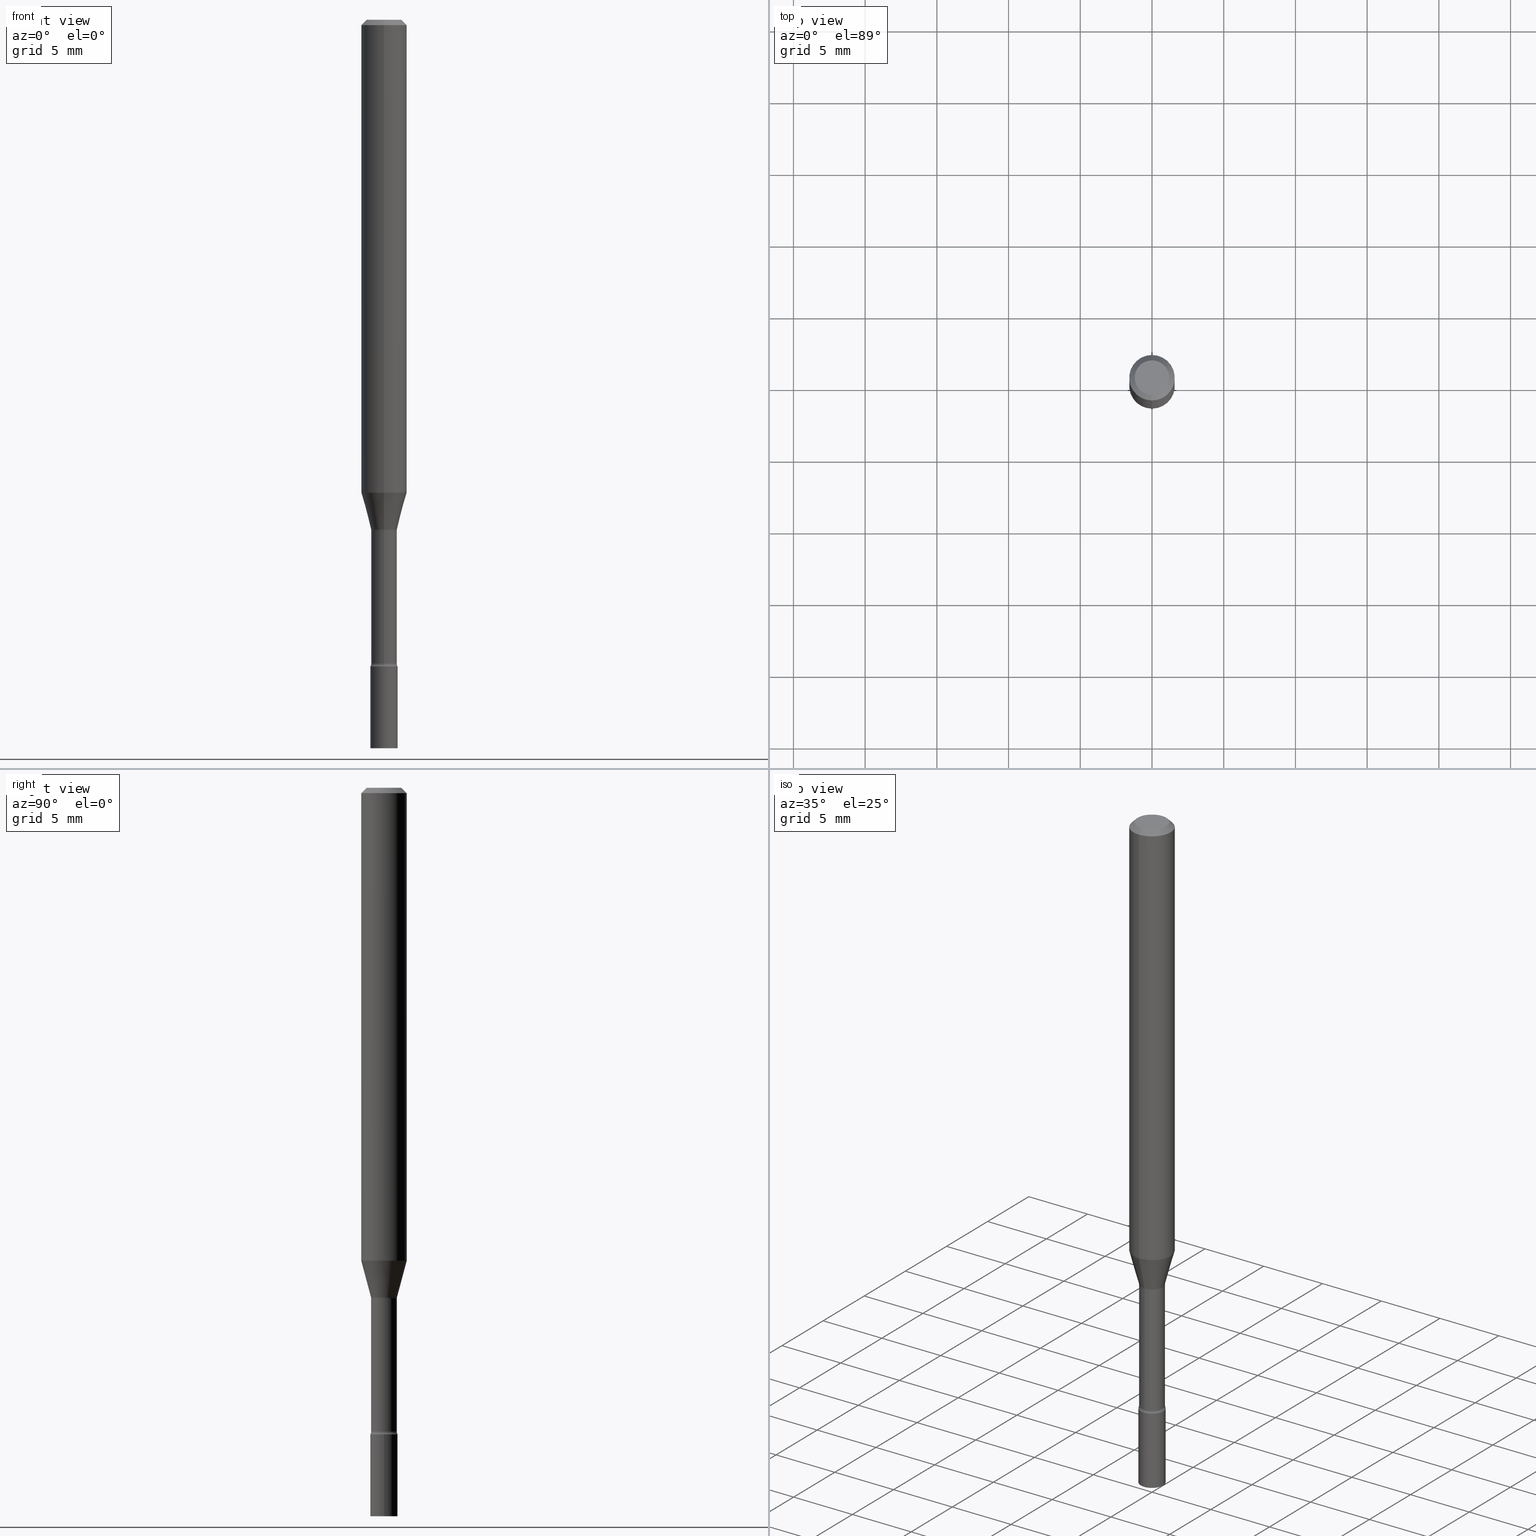
[diagram: canonical four-view strip — front | top / right | iso, engineering-drawing reading convention]
A machine part, canonical four-view strip (front | top / right | iso — engineering-drawing reading convention). The complete STEP part file that produces these views, byte-faithful:
ISO-10303-21;
HEADER;
FILE_DESCRIPTION (( 'STEP AP203' ),
    '1' );
FILE_NAME ('03470.STEP',
    '2024-03-08T21:27:31',
    ( '' ),
    ( '' ),
    'SwSTEP 2.0',
    'SolidWorks 2023',
    '' );
FILE_SCHEMA (( 'CONFIG_CONTROL_DESIGN' ));
ENDSEC;

DATA;
#1 = DIRECTION ( 'NONE',  ( 1.000000000000000000, -6.982962677686268288E-15, 0.000000000000000000 ) ) ;
#2 = ORIENTED_EDGE ( 'NONE', *, *, #157, .F. ) ;
#3 = CIRCLE ( 'NONE', #180, 0.01500000000000001853 ) ;
#4 = DIRECTION ( 'NONE',  ( -2.445468806185136597E-29, 3.491481338843145583E-15, 1.000000000000000000 ) ) ;
#5 = CC_DESIGN_APPROVAL ( #159, ( #132 ) ) ;
#6 = AXIS2_PLACEMENT_3D ( 'NONE', #146, #426, #188 ) ;
#7 = FACE_OUTER_BOUND ( 'NONE', #168, .T. ) ;
#8 = CARTESIAN_POINT ( 'NONE',  ( 3.668185763186064161E-31, -5.237246992060938980E-17, -0.01500000000000003067 ) ) ;
#9 = VERTEX_POINT ( 'NONE', #94 ) ;
#10 = ADVANCED_FACE ( 'NONE', ( #7 ), #500, .F. ) ;
#11 = DIRECTION ( 'NONE',  ( -6.982962677686265133E-15, -1.000000000000000000, 0.000000000000000000 ) ) ;
#12 = EDGE_LOOP ( 'NONE', ( #207, #153, #401, #475 ) ) ;
#13 = EDGE_CURVE ( 'NONE', #376, #9, #486, .T. ) ;
#14 = EDGE_CURVE ( 'NONE', #516, #52, #217, .T. ) ;
#15 = DIRECTION ( 'NONE',  ( -1.000000000000000000, 6.982962677686265922E-15, -4.883557194083112901E-29 ) ) ;
#16 = VECTOR ( 'NONE', #444, 39.37007874015748143 ) ;
#17 = VERTEX_POINT ( 'NONE', #507 ) ;
#18 = EDGE_CURVE ( 'NONE', #283, #117, #459, .T. ) ;
#19 = VERTEX_POINT ( 'NONE', #29 ) ;
#20 = APPLICATION_PROTOCOL_DEFINITION ( 'international standard', 'config_control_design', 1994, #316 ) ;
#21 = DIRECTION ( 'NONE',  ( -6.982962677686265922E-15, -1.000000000000000000, 4.370956789862821150E-15 ) ) ;
#22 = COORDINATED_UNIVERSAL_TIME_OFFSET ( 5, 0, .BEHIND. ) ;
#23 = FACE_OUTER_BOUND ( 'NONE', #140, .T. ) ;
#24 = CIRCLE ( 'NONE', #111, 0.03576111260566398192 ) ;
#25 = DATE_AND_TIME ( #105, #252 ) ;
#26 = DIRECTION ( 'NONE',  ( -6.982962677686265133E-15, -1.000000000000000000, 0.000000000000000000 ) ) ;
#27 = DIRECTION ( 'NONE',  ( 1.000000000000000000, 0.000000000000000000, 0.000000000000000000 ) ) ;
#28 = DIRECTION ( 'NONE',  ( -6.982962677686265922E-15, -1.000000000000000000, 0.000000000000000000 ) ) ;
#29 = CARTESIAN_POINT ( 'NONE',  ( -0.03749999999999999861, -6.323717501156401251E-15, -2.000000000000000000 ) ) ;
#30 = AXIS2_PLACEMENT_3D ( 'NONE', #148, #422, #349 ) ;
#31 = DIRECTION ( 'NONE',  ( -2.445457175457371238E-29, 3.491497994707285669E-15, 1.000000000000000000 ) ) ;
#32 = EDGE_CURVE ( 'NONE', #82, #403, #253, .T. ) ;
#33 = CARTESIAN_POINT ( 'NONE',  ( 3.316907271900976096E-16, 0.04749999999999999362, -1.803027146357572283E-16 ) ) ;
#34 = ORIENTED_EDGE ( 'NONE', *, *, #185, .F. ) ;
#35 = CARTESIAN_POINT ( 'NONE',  ( 0.000000000000000000, 0.000000000000000000, 0.000000000000000000 ) ) ;
#36 = EDGE_CURVE ( 'NONE', #289, #286, #298, .T. ) ;
#37 = ORIENTED_EDGE ( 'NONE', *, *, #307, .T. ) ;
#38 = AXIS2_PLACEMENT_3D ( 'NONE', #119, #472, #78 ) ;
#39 = VECTOR ( 'NONE', #410, 39.37007874015748143 ) ;
#40 = DIRECTION ( 'NONE',  ( -2.445457175457371238E-29, 3.491497994707285669E-15, 1.000000000000000000 ) ) ;
#41 = EDGE_LOOP ( 'NONE', ( #209, #178, #432, #296 ) ) ;
#42 = DIRECTION ( 'NONE',  ( 1.000000000000000000, -6.982962677686266711E-15, 4.876176775795935793E-29 ) ) ;
#43 = ORIENTED_EDGE ( 'NONE', *, *, #114, .F. ) ;
#44 = ADVANCED_FACE ( 'NONE', ( #465 ), #407, .F. ) ;
#45 = CARTESIAN_POINT ( 'NONE',  ( 3.428485609800787057E-29, -4.894968807958481776E-15, -1.401974787463811101 ) ) ;
#46 = ORIENTED_EDGE ( 'NONE', *, *, #324, .T. ) ;
#47 = MANIFOLD_SOLID_BREP ( 'Body-Move/Copy2[2]', #483 ) ;
#48 = CIRCLE ( 'NONE', #199, 0.03749999999999999861 ) ;
#49 = PRODUCT ( '03470', '03470', '', ( #345 ) ) ;
#50 = CARTESIAN_POINT ( 'NONE',  ( 3.840629472727447874E-16, 0.04749999999999999362, -1.947592745229184119E-16 ) ) ;
#51 = AXIS2_PLACEMENT_3D ( 'NONE', #353, #275, #457 ) ;
#52 = VERTEX_POINT ( 'NONE', #113 ) ;
#53 = DIRECTION ( 'NONE',  ( -2.445457175457371238E-29, 3.491497994707285669E-15, 1.000000000000000000 ) ) ;
#54 = ORIENTED_EDGE ( 'NONE', *, *, #413, .F. ) ;
#55 = CARTESIAN_POINT ( 'NONE',  ( 4.890937612370273194E-29, -6.982962677686291165E-15, -2.000000000000000000 ) ) ;
#56 = ORIENTED_EDGE ( 'NONE', *, *, #68, .T. ) ;
#57 = ADVANCED_FACE ( 'NONE', ( #23 ), #109, .T. ) ;
#58 = CARTESIAN_POINT ( 'NONE',  ( 4.340707130978617347E-29, -6.197379376446583794E-15, -1.775000000000000133 ) ) ;
#59 = VECTOR ( 'NONE', #470, 39.37007874015748143 ) ;
#60 = ORIENTED_EDGE ( 'NONE', *, *, #324, .F. ) ;
#61 = DATE_AND_TIME ( #112, #491 ) ;
#62 = CARTESIAN_POINT ( 'NONE',  ( 3.428485609800787057E-29, -4.894968807958481776E-15, -1.401974787463811101 ) ) ;
#63 = APPROVAL ( #141, 'UNSPECIFIED' ) ;
#64 = APPROVAL_ROLE ( '' ) ;
#65 = PLANE ( 'NONE',  #352 ) ;
#66 = DIRECTION ( 'NONE',  ( -6.982962677686265922E-15, -1.000000000000000000, 3.491497994707285669E-15 ) ) ;
#67 = AXIS2_PLACEMENT_3D ( 'NONE', #326, #331, #487 ) ;
#68 = EDGE_CURVE ( 'NONE', #340, #52, #346, .T. ) ;
#69 = AXIS2_PLACEMENT_3D ( 'NONE', #390, #505, #270 ) ;
#70 = CONICAL_SURFACE ( 'NONE', #405, 0.06250000000000000000, 0.7853981633974483900 ) ;
#71 = APPROVAL_ROLE ( '' ) ;
#72 = DIRECTION ( 'NONE',  ( 1.000000000000000000, -7.105427357601001070E-15, 4.926315712517589516E-29 ) ) ;
#73 = EDGE_CURVE ( 'NONE', #340, #376, #24, .T. ) ;
#74 =( LENGTH_UNIT ( ) NAMED_UNIT ( * ) SI_UNIT ( $, .METRE. ) );
#75 = CARTESIAN_POINT ( 'NONE',  ( 3.428469303813700067E-29, -4.894992159060069761E-15, -1.401974787463811101 ) ) ;
#76 = DIRECTION ( 'NONE',  ( 7.105427357600997914E-15, 1.000000000000000000, 0.000000000000000000 ) ) ;
#77 = VERTEX_POINT ( 'NONE', #224 ) ;
#78 = DIRECTION ( 'NONE',  ( -6.982962677686266711E-15, -1.000000000000000000, 0.000000000000000000 ) ) ;
#79 = ORIENTED_EDGE ( 'NONE', *, *, #342, .T. ) ;
#80 = EDGE_CURVE ( 'NONE', #17, #19, #320, .T. ) ;
#81 = CARTESIAN_POINT ( 'NONE',  ( -4.287811248607203282E-16, -0.06250000000000005551, -0.01499999999999981209 ) ) ;
#82 = VERTEX_POINT ( 'NONE', #427 ) ;
#83 = LINE ( 'NONE', #194, #134 ) ;
#84 = ORIENTED_EDGE ( 'NONE', *, *, #32, .F. ) ;
#85 = AXIS2_PLACEMENT_3D ( 'NONE', #402, #333, #125 ) ;
#86 = CARTESIAN_POINT ( 'NONE',  ( 2.618611004132838617E-16, 0.03749999999999301115, -2.000000000000000000 ) ) ;
#87 = ADVANCED_FACE ( 'NONE', ( #145 ), #65, .F. ) ;
#88 = PLANE ( 'NONE',  #234 ) ;
#89 = VERTEX_POINT ( 'NONE', #388 ) ;
#90 = DIRECTION ( 'NONE',  ( -6.982962677686265922E-15, -1.000000000000000000, 3.491497994707285669E-15 ) ) ;
#91 = EDGE_LOOP ( 'NONE', ( #2, #84, #37, #260 ) ) ;
#92 = AXIS2_PLACEMENT_3D ( 'NONE', #86, #356, #319 ) ;
#93 = DIRECTION ( 'NONE',  ( -2.445457175457371238E-29, 3.491497994707285669E-15, 1.000000000000000000 ) ) ;
#94 = CARTESIAN_POINT ( 'NONE',  ( -4.364351673553601150E-16, -0.06250000000000456579, -1.298301615493748118 ) ) ;
#95 = EDGE_CURVE ( 'NONE', #117, #283, #48, .T. ) ;
#96 = CARTESIAN_POINT ( 'NONE',  ( 2.584599201327798623E-16, 0.03524999999999389733, -1.767098259685360606 ) ) ;
#97 = EDGE_LOOP ( 'NONE', ( #162, #371, #123, #280 ) ) ;
#98 = DIRECTION ( 'NONE',  ( 6.982962677686265922E-15, 1.000000000000000000, -3.483106191921935554E-15 ) ) ;
#99 = DESIGN_CONTEXT ( 'detailed design', #316, 'design' ) ;
#100 = ORIENTED_EDGE ( 'NONE', *, *, #514, .T. ) ;
#101 = PERSON_AND_ORGANIZATION_ROLE ( 'classification_officer' ) ;
#102 = CONICAL_SURFACE ( 'NONE', #305, 0.06250000000000000000, 0.7853981633974483900 ) ;
#103 = APPROVAL_PERSON_ORGANIZATION ( #506, #159, #181 ) ;
#104 = DIRECTION ( 'NONE',  ( -6.982962677686266711E-15, -1.000000000000000000, 0.000000000000000000 ) ) ;
#105 = CALENDAR_DATE ( 2024, 8, 3 ) ;
#106 = DIRECTION ( 'NONE',  ( 1.000000000000000000, -6.982962677686268288E-15, 0.000000000000000000 ) ) ;
#107 = PERSON_AND_ORGANIZATION ( #433, #189 ) ;
#108 = DIRECTION ( 'NONE',  ( -2.445457175457371238E-29, 3.491497994707285669E-15, 1.000000000000000000 ) ) ;
#109 = CYLINDRICAL_SURFACE ( 'NONE', #51, 0.03525000000000003131 ) ;
#110 = AXIS2_PLACEMENT_3D ( 'NONE', #55, #4, #170 ) ;
#111 = AXIS2_PLACEMENT_3D ( 'NONE', #461, #273, #313 ) ;
#112 = CALENDAR_DATE ( 2024, 8, 3 ) ;
#113 = CARTESIAN_POINT ( 'NONE',  ( 2.504663143554786295E-16, 0.03524999999999509775, -1.401974787463811101 ) ) ;
#114 = EDGE_CURVE ( 'NONE', #19, #286, #469, .T. ) ;
#115 = CARTESIAN_POINT ( 'NONE',  ( -3.508938745536919941E-16, -0.05025000000000622025, -1.767098259685360384 ) ) ;
#116 = LINE ( 'NONE', #160, #318 ) ;
#117 = VERTEX_POINT ( 'NONE', #231 ) ;
#118 = AXIS2_PLACEMENT_3D ( 'NONE', #420, #72, #266 ) ;
#119 = CARTESIAN_POINT ( 'NONE',  ( 3.418975340448834003E-29, -4.881437166405555693E-15, -1.398092501787273179 ) ) ;
#120 = CYLINDRICAL_SURFACE ( 'NONE', #377, 0.03749999999999999861 ) ;
#121 = ORIENTED_EDGE ( 'NONE', *, *, #315, .T. ) ;
#122 = DIRECTION ( 'NONE',  ( 4.937700262164548042E-15, 0.7071067811865451302, -0.7071067811865499042 ) ) ;
#123 = ORIENTED_EDGE ( 'NONE', *, *, #503, .T. ) ;
#124 = AXIS2_PLACEMENT_3D ( 'NONE', #115, #277, #428 ) ;
#125 = DIRECTION ( 'NONE',  ( -6.982962677686265922E-15, -1.000000000000000000, 3.483106191921935554E-15 ) ) ;
#126 = ADVANCED_FACE ( 'NONE', ( #511 ), #225, .T. ) ;
#127 = CARTESIAN_POINT ( 'NONE',  ( 4.321363118885798981E-29, -6.169820030142171405E-15, -1.767098259685360606 ) ) ;
#128 = CARTESIAN_POINT ( 'NONE',  ( 4.321383671524591751E-29, -6.169790597593636121E-15, -1.767098259685360606 ) ) ;
#129 = DIRECTION ( 'NONE',  ( -6.982962677686267499E-15, -1.000000000000000000, 0.000000000000000000 ) ) ;
#130 = ORIENTED_EDGE ( 'NONE', *, *, #267, .T. ) ;
#131 = VECTOR ( 'NONE', #187, 39.37007874015748143 ) ;
#132 = SECURITY_CLASSIFICATION ( '', '', #339 ) ;
#133 = LINE ( 'NONE', #404, #425 ) ;
#134 = VECTOR ( 'NONE', #122, 39.37007874015748143 ) ;
#135 = ORIENTED_EDGE ( 'NONE', *, *, #73, .T. ) ;
#136 = CARTESIAN_POINT ( 'NONE',  ( 3.668185763186064161E-31, -5.237246992060938980E-17, -0.01500000000000003067 ) ) ;
#137 = ORIENTED_EDGE ( 'NONE', *, *, #389, .F. ) ;
#138 = DATE_TIME_ROLE ( 'creation_date' ) ;
#139 = ADVANCED_FACE ( 'NONE', ( #179 ), #391, .F. ) ;
#140 = EDGE_LOOP ( 'NONE', ( #450, #332, #436, #337 ) ) ;
#141 = APPROVAL_STATUS ( 'not_yet_approved' ) ;
#142 =( GEOMETRIC_REPRESENTATION_CONTEXT ( 3 ) GLOBAL_UNCERTAINTY_ASSIGNED_CONTEXT ( ( #218 ) ) GLOBAL_UNIT_ASSIGNED_CONTEXT ( ( #348, #186, #229 ) ) REPRESENTATION_CONTEXT ( 'NONE', 'WORKASPACE' ) );
#143 = DIRECTION ( 'NONE',  ( 1.000000000000000000, -7.105427357601001070E-15, 4.926315712517589516E-29 ) ) ;
#144 = CLOSED_SHELL ( 'NONE', ( #246, #440, #248, #211 ) ) ;
#145 = FACE_OUTER_BOUND ( 'NONE', #204, .T. ) ;
#146 = CARTESIAN_POINT ( 'NONE',  ( 4.321383671524591751E-29, -6.169790597593636121E-15, -1.767098259685360606 ) ) ;
#147 = EDGE_CURVE ( 'NONE', #9, #156, #172, .T. ) ;
#148 = CARTESIAN_POINT ( 'NONE',  ( 4.321363118885798981E-29, -6.169820030142171405E-15, -1.767098259685360606 ) ) ;
#149 = APPROVAL_DATE_TIME ( #358, #159 ) ;
#150 = DIRECTION ( 'NONE',  ( -6.982962677686266711E-15, -1.000000000000000000, 0.000000000000000000 ) ) ;
#151 = DIRECTION ( 'NONE',  ( -6.982962677686265922E-15, -1.000000000000000000, 4.370956789862821150E-15 ) ) ;
#152 = CC_DESIGN_PERSON_AND_ORGANIZATION_ASSIGNMENT ( #419, #462, ( #205 ) ) ;
#153 = ORIENTED_EDGE ( 'NONE', *, *, #114, .T. ) ;
#154 = DIRECTION ( 'NONE',  ( -2.445468806185136597E-29, 3.491481338843145583E-15, 1.000000000000000000 ) ) ;
#155 = CIRCLE ( 'NONE', #481, 0.01499999999999998557 ) ;
#156 = VERTEX_POINT ( 'NONE', #343 ) ;
#157 = EDGE_CURVE ( 'NONE', #403, #117, #155, .T. ) ;
#158 = DIRECTION ( 'NONE',  ( -6.982962677686266711E-15, -1.000000000000000000, 3.491497994707286063E-15 ) ) ;
#159 = APPROVAL ( #417, 'UNSPECIFIED' ) ;
#160 = CARTESIAN_POINT ( 'NONE',  ( 2.540979878465690730E-16, 0.03576111260565909694, -1.398092501787273179 ) ) ;
#161 = EDGE_CURVE ( 'NONE', #156, #9, #261, .T. ) ;
#162 = ORIENTED_EDGE ( 'NONE', *, *, #68, .F. ) ;
#163 = CARTESIAN_POINT ( 'NONE',  ( -2.497185146378532502E-16, -0.03576111260566886690, -1.398092501787273179 ) ) ;
#164 = AXIS2_PLACEMENT_3D ( 'NONE', #222, #380, #21 ) ;
#165 = CARTESIAN_POINT ( 'NONE',  ( 4.340707130978617347E-29, -6.197379376446583794E-15, -1.775000000000000133 ) ) ;
#166 = ORIENTED_EDGE ( 'NONE', *, *, #503, .F. ) ;
#167 = DIRECTION ( 'NONE',  ( -6.982962677686265922E-15, -1.000000000000000000, 3.483106191921935554E-15 ) ) ;
#168 = EDGE_LOOP ( 'NONE', ( #366, #373, #175, #291 ) ) ;
#169 = EDGE_CURVE ( 'NONE', #376, #340, #397, .T. ) ;
#170 = DIRECTION ( 'NONE',  ( 1.000000000000000000, -6.982962677686268288E-15, 0.000000000000000000 ) ) ;
#171 = ORIENTED_EDGE ( 'NONE', *, *, #147, .T. ) ;
#172 = CIRCLE ( 'NONE', #164, 0.06250000000000000000 ) ;
#173 = DIRECTION ( 'NONE',  ( -2.438088387897960049E-29, 3.491481338843145188E-15, 1.000000000000000000 ) ) ;
#174 = AXIS2_PLACEMENT_3D ( 'NONE', #182, #230, #106 ) ;
#175 = ORIENTED_EDGE ( 'NONE', *, *, #95, .T. ) ;
#176 = EDGE_CURVE ( 'NONE', #455, #357, #297, .T. ) ;
#177 = CALENDAR_DATE ( 2024, 8, 3 ) ;
#178 = ORIENTED_EDGE ( 'NONE', *, *, #161, .T. ) ;
#179 = FACE_OUTER_BOUND ( 'NONE', #97, .T. ) ;
#180 = AXIS2_PLACEMENT_3D ( 'NONE', #375, #15, #129 ) ;
#181 = APPROVAL_ROLE ( '' ) ;
#182 = CARTESIAN_POINT ( 'NONE',  ( 4.890937612370273194E-29, -6.982962677686291165E-15, -2.000000000000000000 ) ) ;
#183 = AXIS2_PLACEMENT_3D ( 'NONE', #351, #184, #502 ) ;
#184 = DIRECTION ( 'NONE',  ( -2.445457175457371238E-29, 3.491497994707285669E-15, 1.000000000000000000 ) ) ;
#185 = EDGE_CURVE ( 'NONE', #340, #156, #116, .T. ) ;
#186 =( NAMED_UNIT ( * ) PLANE_ANGLE_UNIT ( ) SI_UNIT ( $, .RADIAN. ) );
#187 = DIRECTION ( 'NONE',  ( -2.445468806185136877E-29, 3.491481338843145188E-15, 1.000000000000000000 ) ) ;
#188 = DIRECTION ( 'NONE',  ( -6.982962677686265922E-15, -1.000000000000000000, 3.491497994707286063E-15 ) ) ;
#189 = ORGANIZATION ( 'UNSPECIFIED', 'UNSPECIFIED', '' ) ;
#190 = SHAPE_DEFINITION_REPRESENTATION ( #198, #269 ) ;
#191 = ADVANCED_FACE ( 'NONE', ( #512 ), #430, .T. ) ;
#192 = LINE ( 'NONE', #354, #415 ) ;
#193 = ORIENTED_EDGE ( 'NONE', *, *, #389, .T. ) ;
#194 = CARTESIAN_POINT ( 'NONE',  ( 4.364351673553919652E-16, 0.06249999999999995143, -0.01500000000000024751 ) ) ;
#195 = EDGE_LOOP ( 'NONE', ( #239, #301, #368, #213 ) ) ;
#196 = FACE_OUTER_BOUND ( 'NONE', #412, .T. ) ;
#197 = AXIS2_PLACEMENT_3D ( 'NONE', #127, #216, #295 ) ;
#198 = PRODUCT_DEFINITION_SHAPE ( 'NONE', 'NONE',  #205 ) ;
#199 = AXIS2_PLACEMENT_3D ( 'NONE', #382, #108, #28 ) ;
#200 = FACE_OUTER_BOUND ( 'NONE', #195, .T. ) ;
#201 = CARTESIAN_POINT ( 'NONE',  ( -2.618611004131914171E-16, -0.03750000000000618117, -1.775000000000000133 ) ) ;
#202 = ORIENTED_EDGE ( 'NONE', *, *, #292, .T. ) ;
#203 = DIRECTION ( 'NONE',  ( 2.445457175457371238E-29, -3.491497994707285669E-15, -1.000000000000000000 ) ) ;
#204 = EDGE_LOOP ( 'NONE', ( #235, #414 ) ) ;
#205 = PRODUCT_DEFINITION ( 'UNKNOWN', '', #244, #99 ) ;
#206 = CARTESIAN_POINT ( 'NONE',  ( 4.440892098500625669E-16, 0.06250000000000000000, -2.182186246692053543E-16 ) ) ;
#207 = ORIENTED_EDGE ( 'NONE', *, *, #80, .T. ) ;
#208 = FACE_OUTER_BOUND ( 'NONE', #243, .T. ) ;
#209 = ORIENTED_EDGE ( 'NONE', *, *, #342, .F. ) ;
#210 = MANIFOLD_SOLID_BREP ( 'Body-Move/Copy2[1]', #144 ) ;
#211 = ADVANCED_FACE ( 'NONE', ( #520 ), #477, .T. ) ;
#212 = DIRECTION ( 'NONE',  ( 2.445457175457371238E-29, -3.491497994707285669E-15, -1.000000000000000000 ) ) ;
#213 = ORIENTED_EDGE ( 'NONE', *, *, #13, .F. ) ;
#214 = AXIS2_PLACEMENT_3D ( 'NONE', #518, #438, #158 ) ;
#215 = CC_DESIGN_APPROVAL ( #374, ( #205 ) ) ;
#216 = DIRECTION ( 'NONE',  ( -2.445457175457371238E-29, 3.491497994707285669E-15, 1.000000000000000000 ) ) ;
#217 = CIRCLE ( 'NONE', #264, 0.03524999999999999661 ) ;
#218 = UNCERTAINTY_MEASURE_WITH_UNIT (LENGTH_MEASURE( 1.000000000000000082E-05 ), #348, 'distance_accuracy_value', 'NONE');
#219 = ORIENTED_EDGE ( 'NONE', *, *, #176, .T. ) ;
#220 = DATE_TIME_ROLE ( 'classification_date' ) ;
#221 = EDGE_CURVE ( 'NONE', #82, #516, #279, .T. ) ;
#222 = CARTESIAN_POINT ( 'NONE',  ( 3.174941001517083713E-29, -4.533017487021651812E-15, -1.298301615493748340 ) ) ;
#223 = APPROVAL_DATE_TIME ( #61, #63 ) ;
#224 = CARTESIAN_POINT ( 'NONE',  ( 4.440892098500945650E-16, 0.06249999999999995143, -0.01500000000000024751 ) ) ;
#225 = CONICAL_SURFACE ( 'NONE', #359, 0.03576111260566398192, 0.2617993877991499074 ) ;
#226 = COORDINATED_UNIVERSAL_TIME_OFFSET ( 5, 0, .BEHIND. ) ;
#227 = APPROVAL_PERSON_ORGANIZATION ( #498, #374, #64 ) ;
#228 = CARTESIAN_POINT ( 'NONE',  ( 3.418975340448834003E-29, -4.881437166405555693E-15, -1.398092501787273179 ) ) ;
#229 =( NAMED_UNIT ( * ) SI_UNIT ( $, .STERADIAN. ) SOLID_ANGLE_UNIT ( ) );
#230 = DIRECTION ( 'NONE',  ( -2.445468806185136597E-29, 3.491481338843145583E-15, 1.000000000000000000 ) ) ;
#231 = CARTESIAN_POINT ( 'NONE',  ( 2.664535259100807500E-16, 0.03749999999999377442, -1.775000000000000133 ) ) ;
#232 = CC_DESIGN_PERSON_AND_ORGANIZATION_ASSIGNMENT ( #107, #504, ( #244 ) ) ;
#233 = CYLINDRICAL_SURFACE ( 'NONE', #288, 0.03749999999999999861 ) ;
#234 = AXIS2_PLACEMENT_3D ( 'NONE', #165, #173, #489 ) ;
#235 = ORIENTED_EDGE ( 'NONE', *, *, #18, .F. ) ;
#236 = CARTESIAN_POINT ( 'NONE',  ( -2.461494343884410751E-16, -0.03525000000000003131, 1.230753043134319234E-16 ) ) ;
#237 = ORIENTED_EDGE ( 'NONE', *, *, #36, .T. ) ;
#238 = DIRECTION ( 'NONE',  ( 1.000000000000000000, -6.982962677686266711E-15, 4.876176775795935793E-29 ) ) ;
#239 = ORIENTED_EDGE ( 'NONE', *, *, #169, .T. ) ;
#240 = FACE_OUTER_BOUND ( 'NONE', #355, .T. ) ;
#241 = PRODUCT_RELATED_PRODUCT_CATEGORY ( 'detail', '', ( #49 ) ) ;
#242 = AXIS2_PLACEMENT_3D ( 'NONE', #58, #254, #1 ) ;
#243 = EDGE_LOOP ( 'NONE', ( #237, #46 ) ) ;
#244 = PRODUCT_DEFINITION_FORMATION_WITH_SPECIFIED_SOURCE ( 'ANY', '', #49, .NOT_KNOWN. ) ;
#245 = DIRECTION ( 'NONE',  ( -2.445457175457371518E-29, 3.491497994707285669E-15, 1.000000000000000000 ) ) ;
#246 = ADVANCED_FACE ( 'NONE', ( #400 ), #233, .T. ) ;
#247 = ORIENTED_EDGE ( 'NONE', *, *, #325, .T. ) ;
#248 = ADVANCED_FACE ( 'NONE', ( #196 ), #120, .T. ) ;
#249 = CARTESIAN_POINT ( 'NONE',  ( -3.773273898774340269E-16, -0.04749999999999999362, 1.369330349742737266E-16 ) ) ;
#250 = ORIENTED_EDGE ( 'NONE', *, *, #446, .F. ) ;
#251 = CIRCLE ( 'NONE', #329, 0.06250000000000000000 ) ;
#252 = LOCAL_TIME ( 16, 27, 31.00000000000000000, #22 ) ;
#253 = CIRCLE ( 'NONE', #30, 0.03525000000000006600 ) ;
#254 = DIRECTION ( 'NONE',  ( -2.445468806185136597E-29, 3.491481338843145583E-15, 1.000000000000000000 ) ) ;
#255 = CARTESIAN_POINT ( 'NONE',  ( -2.497185146378532502E-16, -0.03576111260566886690, -1.398092501787273179 ) ) ;
#256 = ADVANCED_FACE ( 'NONE', ( #285 ), #392, .F. ) ;
#257 = CARTESIAN_POINT ( 'NONE',  ( 0.000000000000000000, 0.000000000000000000, 0.000000000000000000 ) ) ;
#258 = ORIENTED_EDGE ( 'NONE', *, *, #325, .F. ) ;
#259 = FACE_OUTER_BOUND ( 'NONE', #378, .T. ) ;
#260 = ORIENTED_EDGE ( 'NONE', *, *, #18, .T. ) ;
#261 = CIRCLE ( 'NONE', #437, 0.06250000000000000000 ) ;
#262 = TOROIDAL_SURFACE ( 'NONE', #467, 0.05024999999999999606, 0.01500000000000002373 ) ;
#263 = APPROVAL_DATE_TIME ( #25, #374 ) ;
#264 = AXIS2_PLACEMENT_3D ( 'NONE', #75, #310, #26 ) ;
#265 = APPLICATION_CONTEXT ( 'configuration controlled 3d designs of mechanical parts and assemblies' ) ;
#266 = DIRECTION ( 'NONE',  ( 7.105427357601001859E-15, 1.000000000000000000, 0.000000000000000000 ) ) ;
#267 = EDGE_CURVE ( 'NONE', #455, #77, #83, .T. ) ;
#268 = COORDINATED_UNIVERSAL_TIME_OFFSET ( 5, 0, .BEHIND. ) ;
#269 = ADVANCED_BREP_SHAPE_REPRESENTATION ( '03470', ( #210, #47, #473 ), #142 ) ;
#270 = DIRECTION ( 'NONE',  ( 1.000000000000000000, -6.982962677686268288E-15, 0.000000000000000000 ) ) ;
#271 = CIRCLE ( 'NONE', #85, 0.06250000000000000000 ) ;
#272 = PERSON_AND_ORGANIZATION ( #433, #189 ) ;
#273 = DIRECTION ( 'NONE',  ( -2.445457175457371238E-29, 3.491497994707285669E-15, 1.000000000000000000 ) ) ;
#274 = CARTESIAN_POINT ( 'NONE',  ( 0.000000000000000000, 0.000000000000000000, 0.000000000000000000 ) ) ;
#275 = DIRECTION ( 'NONE',  ( -2.445457175457371238E-29, 3.491497994707285669E-15, 1.000000000000000000 ) ) ;
#276 = ADVANCED_FACE ( 'NONE', ( #240 ), #363, .T. ) ;
#277 = DIRECTION ( 'NONE',  ( -1.000000000000000000, 6.982962677686265922E-15, -4.883557194083112901E-29 ) ) ;
#278 = VECTOR ( 'NONE', #245, 39.37007874015748143 ) ;
#279 = LINE ( 'NONE', #236, #278 ) ;
#280 = ORIENTED_EDGE ( 'NONE', *, *, #14, .T. ) ;
#281 = AXIS2_PLACEMENT_3D ( 'NONE', #128, #294, #406 ) ;
#282 = CARTESIAN_POINT ( 'NONE',  ( 0.03749999999999999861, -6.459240476859818795E-15, -1.775000000000000133 ) ) ;
#283 = VERTEX_POINT ( 'NONE', #201 ) ;
#284 = ADVANCED_FACE ( 'NONE', ( #200 ), #466, .T. ) ;
#285 = FACE_OUTER_BOUND ( 'NONE', #495, .T. ) ;
#286 = VERTEX_POINT ( 'NONE', #474 ) ;
#287 = CARTESIAN_POINT ( 'NONE',  ( 3.418975340448834003E-29, -4.881437166405555693E-15, -1.398092501787273179 ) ) ;
#288 = AXIS2_PLACEMENT_3D ( 'NONE', #35, #154, #42 ) ;
#289 = VERTEX_POINT ( 'NONE', #282 ) ;
#290 = FACE_OUTER_BOUND ( 'NONE', #480, .T. ) ;
#291 = ORIENTED_EDGE ( 'NONE', *, *, #307, .F. ) ;
#292 = EDGE_CURVE ( 'NONE', #357, #89, #314, .T. ) ;
#293 = LINE ( 'NONE', #441, #16 ) ;
#294 = DIRECTION ( 'NONE',  ( -2.445457175457371238E-29, 3.491497994707285669E-15, 1.000000000000000000 ) ) ;
#295 = DIRECTION ( 'NONE',  ( -6.982962677686266711E-15, -1.000000000000000000, 0.000000000000000000 ) ) ;
#296 = ORIENTED_EDGE ( 'NONE', *, *, #510, .F. ) ;
#297 = CIRCLE ( 'NONE', #214, 0.04749999999999999362 ) ;
#298 = CIRCLE ( 'NONE', #69, 0.03749999999999999861 ) ;
#299 = AXIS2_PLACEMENT_3D ( 'NONE', #257, #93, #90 ) ;
#300 = DIRECTION ( 'NONE',  ( -2.445457175457371518E-29, 3.491497994707285669E-15, 1.000000000000000000 ) ) ;
#301 = ORIENTED_EDGE ( 'NONE', *, *, #185, .T. ) ;
#302 = DIRECTION ( 'NONE',  ( -2.445457175457371238E-29, 3.491497994707285669E-15, 1.000000000000000000 ) ) ;
#303 = ORIENTED_EDGE ( 'NONE', *, *, #429, .F. ) ;
#304 = DIRECTION ( 'NONE',  ( -2.445457175457371238E-29, 3.491497994707285669E-15, 1.000000000000000000 ) ) ;
#305 = AXIS2_PLACEMENT_3D ( 'NONE', #8, #203, #411 ) ;
#306 = APPLICATION_PROTOCOL_DEFINITION ( 'international standard', 'config_control_design', 1994, #265 ) ;
#307 = EDGE_CURVE ( 'NONE', #82, #283, #493, .T. ) ;
#308 = DATE_AND_TIME ( #177, #361 ) ;
#309 = DIRECTION ( 'NONE',  ( -2.445457175457370677E-29, 3.491497994707285669E-15, 1.000000000000000000 ) ) ;
#310 = DIRECTION ( 'NONE',  ( -2.445457175457371238E-29, 3.491497994707285669E-15, 1.000000000000000000 ) ) ;
#311 = APPROVAL_STATUS ( 'not_yet_approved' ) ;
#312 = LOCAL_TIME ( 16, 27, 31.00000000000000000, #268 ) ;
#313 = DIRECTION ( 'NONE',  ( -6.982962677686266711E-15, -1.000000000000000000, 0.000000000000000000 ) ) ;
#314 = LINE ( 'NONE', #81, #59 ) ;
#315 = EDGE_CURVE ( 'NONE', #17, #289, #192, .T. ) ;
#316 = APPLICATION_CONTEXT ( 'configuration controlled 3d designs of mechanical parts and assemblies' ) ;
#317 = DIRECTION ( 'NONE',  ( -2.445457175457371238E-29, 3.491497994707285669E-15, 1.000000000000000000 ) ) ;
#318 = VECTOR ( 'NONE', #431, 39.37007874015748854 ) ;
#319 = DIRECTION ( 'NONE',  ( -1.000000000000000000, 6.982962677686265922E-15, -4.876176775795935793E-29 ) ) ;
#320 = CIRCLE ( 'NONE', #174, 0.03749999999999999861 ) ;
#321 = CARTESIAN_POINT ( 'NONE',  ( 0.000000000000000000, 0.000000000000000000, 0.000000000000000000 ) ) ;
#322 = DIRECTION ( 'NONE',  ( 2.445457175457370677E-29, -3.491497994707285669E-15, -1.000000000000000000 ) ) ;
#323 = EDGE_LOOP ( 'NONE', ( #171, #79, #137, #250 ) ) ;
#324 = EDGE_CURVE ( 'NONE', #286, #289, #423, .T. ) ;
#325 = EDGE_CURVE ( 'NONE', #52, #516, #344, .T. ) ;
#326 = CARTESIAN_POINT ( 'NONE',  ( 7.070579621697501883E-46, -1.009500997127780770E-31, -2.891311977432235496E-17 ) ) ;
#327 = CIRCLE ( 'NONE', #197, 0.03525000000000006600 ) ;
#328 = ORIENTED_EDGE ( 'NONE', *, *, #221, .T. ) ;
#329 = AXIS2_PLACEMENT_3D ( 'NONE', #136, #53, #167 ) ;
#330 = DIRECTION ( 'NONE',  ( -6.982962677686265922E-15, -1.000000000000000000, 3.491497994707286063E-15 ) ) ;
#331 = DIRECTION ( 'NONE',  ( -2.445457175457371238E-29, 3.491497994707285669E-15, 1.000000000000000000 ) ) ;
#332 = ORIENTED_EDGE ( 'NONE', *, *, #413, .T. ) ;
#333 = DIRECTION ( 'NONE',  ( -2.445457175457371238E-29, 3.491497994707285669E-15, 1.000000000000000000 ) ) ;
#334 = EDGE_LOOP ( 'NONE', ( #34, #135, #497, #478 ) ) ;
#335 = CIRCLE ( 'NONE', #110, 0.03749999999999999861 ) ;
#336 = DIRECTION ( 'NONE',  ( -2.445457175457371518E-29, 3.491497994707285669E-15, 1.000000000000000000 ) ) ;
#337 = ORIENTED_EDGE ( 'NONE', *, *, #221, .F. ) ;
#338 = EDGE_CURVE ( 'NONE', #403, #82, #327, .T. ) ;
#339 = SECURITY_CLASSIFICATION_LEVEL ( 'unclassified' ) ;
#340 = VERTEX_POINT ( 'NONE', #451 ) ;
#341 = DIRECTION ( 'NONE',  ( 0.000000000000000000, 0.000000000000000000, 1.000000000000000000 ) ) ;
#342 = EDGE_CURVE ( 'NONE', #156, #77, #409, .T. ) ;
#343 = CARTESIAN_POINT ( 'NONE',  ( 4.440892098500940720E-16, 0.06249999999999543421, -1.298301615493748562 ) ) ;
#344 = CIRCLE ( 'NONE', #362, 0.03524999999999999661 ) ;
#345 = MECHANICAL_CONTEXT ( 'NONE', #265, 'mechanical' ) ;
#346 = CIRCLE ( 'NONE', #118, 0.01500000000000001853 ) ;
#347 = CARTESIAN_POINT ( 'NONE',  ( 2.618611004132783890E-16, 0.03749999999999380218, -1.775000000000000133 ) ) ;
#348 =( CONVERSION_BASED_UNIT ( 'INCH', #379 ) LENGTH_UNIT ( ) NAMED_UNIT ( #443 ) );
#349 = DIRECTION ( 'NONE',  ( -6.982962677686266711E-15, -1.000000000000000000, 0.000000000000000000 ) ) ;
#350 = COORDINATED_UNIVERSAL_TIME_OFFSET ( 5, 0, .BEHIND. ) ;
#351 = CARTESIAN_POINT ( 'NONE',  ( 4.340686486436833477E-29, -6.197408940605432654E-15, -1.775000000000000133 ) ) ;
#352 = AXIS2_PLACEMENT_3D ( 'NONE', #347, #309, #66 ) ;
#353 = CARTESIAN_POINT ( 'NONE',  ( 0.000000000000000000, 0.000000000000000000, 0.000000000000000000 ) ) ;
#354 = CARTESIAN_POINT ( 'NONE',  ( 0.03749999999999999861, -2.618611004132350016E-16, 1.828566290923475922E-30 ) ) ;
#355 = EDGE_LOOP ( 'NONE', ( #54, #492, #328, #258 ) ) ;
#356 = DIRECTION ( 'NONE',  ( 2.438088387897960049E-29, -3.491481338843145188E-15, -1.000000000000000000 ) ) ;
#357 = VERTEX_POINT ( 'NONE', #249 ) ;
#358 = DATE_AND_TIME ( #476, #312 ) ;
#359 = AXIS2_PLACEMENT_3D ( 'NONE', #228, #304, #104 ) ;
#360 = CARTESIAN_POINT ( 'NONE',  ( 3.174941001517083713E-29, -4.533017487021651812E-15, -1.298301615493748340 ) ) ;
#361 = LOCAL_TIME ( 16, 27, 31.00000000000000000, #468 ) ;
#362 = AXIS2_PLACEMENT_3D ( 'NONE', #485, #302, #11 ) ;
#363 = CYLINDRICAL_SURFACE ( 'NONE', #448, 0.03525000000000003131 ) ;
#364 = CC_DESIGN_PERSON_AND_ORGANIZATION_ASSIGNMENT ( #456, #101, ( #132 ) ) ;
#365 = DIRECTION ( 'NONE',  ( -2.445457175457371238E-29, 3.491497994707285669E-15, 1.000000000000000000 ) ) ;
#366 = ORIENTED_EDGE ( 'NONE', *, *, #338, .F. ) ;
#367 = DIRECTION ( 'NONE',  ( -2.445457175457371238E-29, 3.491497994707285669E-15, 1.000000000000000000 ) ) ;
#368 = ORIENTED_EDGE ( 'NONE', *, *, #147, .F. ) ;
#369 = CC_DESIGN_SECURITY_CLASSIFICATION ( #132, ( #244 ) ) ;
#370 = CYLINDRICAL_SURFACE ( 'NONE', #299, 0.06250000000000000000 ) ;
#371 = ORIENTED_EDGE ( 'NONE', *, *, #169, .F. ) ;
#372 = CARTESIAN_POINT ( 'NONE',  ( 3.668185763186064161E-31, -5.237246992060938980E-17, -0.01500000000000003067 ) ) ;
#373 = ORIENTED_EDGE ( 'NONE', *, *, #157, .T. ) ;
#374 = APPROVAL ( #311, 'UNSPECIFIED' ) ;
#375 = CARTESIAN_POINT ( 'NONE',  ( -3.508938745537005730E-16, -0.05025000000000488798, -1.401974787463810879 ) ) ;
#376 = VERTEX_POINT ( 'NONE', #163 ) ;
#377 = AXIS2_PLACEMENT_3D ( 'NONE', #395, #393, #238 ) ;
#378 = EDGE_LOOP ( 'NONE', ( #452, #56, #247, #166 ) ) ;
#379 = LENGTH_MEASURE_WITH_UNIT ( LENGTH_MEASURE( 0.02539999999999999897 ), #74 );
#380 = DIRECTION ( 'NONE',  ( -2.445457175457371238E-29, 3.491497994707285669E-15, 1.000000000000000000 ) ) ;
#381 = CALENDAR_DATE ( 2024, 8, 3 ) ;
#382 = CARTESIAN_POINT ( 'NONE',  ( 4.340686486436833477E-29, -6.197408940605432654E-15, -1.775000000000000133 ) ) ;
#383 = AXIS2_PLACEMENT_3D ( 'NONE', #287, #365, #150 ) ;
#384 = CC_DESIGN_APPROVAL ( #63, ( #244 ) ) ;
#385 = PERSON_AND_ORGANIZATION_ROLE ( 'design_owner' ) ;
#386 = DIRECTION ( 'NONE',  ( -2.445457175457371238E-29, 3.491497994707285669E-15, 1.000000000000000000 ) ) ;
#387 = PERSON_AND_ORGANIZATION ( #433, #189 ) ;
#388 = CARTESIAN_POINT ( 'NONE',  ( -4.364351673553912750E-16, -0.06250000000000005551, -0.01499999999999981209 ) ) ;
#389 = EDGE_CURVE ( 'NONE', #89, #77, #271, .T. ) ;
#390 = CARTESIAN_POINT ( 'NONE',  ( 4.340707130978617347E-29, -6.197379376446583794E-15, -1.775000000000000133 ) ) ;
#391 = TOROIDAL_SURFACE ( 'NONE', #517, 0.05024999999999999606, 0.01500000000000002373 ) ;
#392 = PLANE ( 'NONE',  #458 ) ;
#393 = DIRECTION ( 'NONE',  ( -2.445468806185136597E-29, 3.491481338843145583E-15, 1.000000000000000000 ) ) ;
#394 = ORIENTED_EDGE ( 'NONE', *, *, #267, .F. ) ;
#395 = CARTESIAN_POINT ( 'NONE',  ( 0.000000000000000000, 0.000000000000000000, 0.000000000000000000 ) ) ;
#396 = ORIENTED_EDGE ( 'NONE', *, *, #510, .T. ) ;
#397 = CIRCLE ( 'NONE', #38, 0.03576111260566398192 ) ;
#398 = DIRECTION ( 'NONE',  ( -6.982962677686265133E-15, -1.000000000000000000, 3.491497994707285669E-15 ) ) ;
#399 = ORIENTED_EDGE ( 'NONE', *, *, #429, .T. ) ;
#400 = FACE_OUTER_BOUND ( 'NONE', #12, .T. ) ;
#401 = ORIENTED_EDGE ( 'NONE', *, *, #36, .F. ) ;
#402 = CARTESIAN_POINT ( 'NONE',  ( 3.668185763186064161E-31, -5.237246992060938980E-17, -0.01500000000000003067 ) ) ;
#403 = VERTEX_POINT ( 'NONE', #96 ) ;
#404 = CARTESIAN_POINT ( 'NONE',  ( -4.364351673553916201E-16, -0.06250000000000000000, 2.182186246692053543E-16 ) ) ;
#405 = AXIS2_PLACEMENT_3D ( 'NONE', #372, #212, #98 ) ;
#406 = DIRECTION ( 'NONE',  ( -6.982962677686265922E-15, -1.000000000000000000, 3.491497994707286063E-15 ) ) ;
#407 = TOROIDAL_SURFACE ( 'NONE', #6, 0.05025000000000004463, 0.01499999999999998036 ) ;
#408 = CC_DESIGN_PERSON_AND_ORGANIZATION_ASSIGNMENT ( #496, #501, ( #244 ) ) ;
#409 = LINE ( 'NONE', #206, #490 ) ;
#410 = DIRECTION ( 'NONE',  ( -1.807323732225327773E-15, -0.2588190451025178529, 0.9659258262890690894 ) ) ;
#411 = DIRECTION ( 'NONE',  ( 6.982962677686265922E-15, 1.000000000000000000, -3.483106191921935554E-15 ) ) ;
#412 = EDGE_LOOP ( 'NONE', ( #43, #399, #121, #60 ) ) ;
#413 = EDGE_CURVE ( 'NONE', #403, #52, #293, .T. ) ;
#414 = ORIENTED_EDGE ( 'NONE', *, *, #95, .F. ) ;
#415 = VECTOR ( 'NONE', #482, 39.37007874015748143 ) ;
#416 = CC_DESIGN_PERSON_AND_ORGANIZATION_ASSIGNMENT ( #272, #385, ( #49 ) ) ;
#417 = APPROVAL_STATUS ( 'not_yet_approved' ) ;
#418 = DIRECTION ( 'NONE',  ( -6.982962677686265922E-15, -1.000000000000000000, 3.491497994707286063E-15 ) ) ;
#419 = PERSON_AND_ORGANIZATION ( #433, #189 ) ;
#420 = CARTESIAN_POINT ( 'NONE',  ( 3.570477247194845322E-16, 0.05024999999999510414, -1.401974787463811323 ) ) ;
#421 = DATE_AND_TIME ( #381, #424 ) ;
#422 = DIRECTION ( 'NONE',  ( -2.445457175457371238E-29, 3.491497994707285669E-15, 1.000000000000000000 ) ) ;
#423 = CIRCLE ( 'NONE', #242, 0.03749999999999999861 ) ;
#424 = LOCAL_TIME ( 16, 27, 31.00000000000000000, #350 ) ;
#425 = VECTOR ( 'NONE', #336, 39.37007874015748143 ) ;
#426 = DIRECTION ( 'NONE',  ( -2.445457175457371238E-29, 3.491497994707285669E-15, 1.000000000000000000 ) ) ;
#427 = CARTESIAN_POINT ( 'NONE',  ( -2.461494343883981315E-16, -0.03525000000000623468, -1.767098259685360606 ) ) ;
#428 = DIRECTION ( 'NONE',  ( -6.982962677686262766E-15, -1.000000000000000000, 0.000000000000000000 ) ) ;
#429 = EDGE_CURVE ( 'NONE', #19, #17, #335, .T. ) ;
#430 = CYLINDRICAL_SURFACE ( 'NONE', #508, 0.06250000000000000000 ) ;
#431 = DIRECTION ( 'NONE',  ( 1.839019923739597554E-15, 0.2588190451025245697, 0.9659258262890670910 ) ) ;
#432 = ORIENTED_EDGE ( 'NONE', *, *, #446, .T. ) ;
#433 = PERSON ( 'UNSPECIFIED', 'UNSPECIFIED', 'UNSPECIFIED', ('UNSPECIFIED'), ('UNSPECIFIED'), ('UNSPECIFIED') ) ;
#434 = CC_DESIGN_DATE_AND_TIME_ASSIGNMENT ( #308, #138, ( #205 ) ) ;
#435 = DIRECTION ( 'NONE',  ( 6.982962677686265922E-15, 1.000000000000000000, -3.491497994707285669E-15 ) ) ;
#436 = ORIENTED_EDGE ( 'NONE', *, *, #14, .F. ) ;
#437 = AXIS2_PLACEMENT_3D ( 'NONE', #360, #40, #151 ) ;
#438 = DIRECTION ( 'NONE',  ( -2.445457175457371238E-29, 3.491497994707285669E-15, 1.000000000000000000 ) ) ;
#439 = ORIENTED_EDGE ( 'NONE', *, *, #292, .F. ) ;
#440 = ADVANCED_FACE ( 'NONE', ( #208 ), #88, .T. ) ;
#441 = CARTESIAN_POINT ( 'NONE',  ( 2.504663143554354887E-16, 0.03525000000000003131, -1.230753043134319234E-16 ) ) ;
#442 = ORIENTED_EDGE ( 'NONE', *, *, #80, .F. ) ;
#443 = DIMENSIONAL_EXPONENTS ( 1.000000000000000000, 0.000000000000000000, 0.000000000000000000, 0.000000000000000000, 0.000000000000000000, 0.000000000000000000, 0.000000000000000000 ) ;
#444 = DIRECTION ( 'NONE',  ( -2.445457175457371518E-29, 3.491497994707285669E-15, 1.000000000000000000 ) ) ;
#445 = ORIENTED_EDGE ( 'NONE', *, *, #514, .F. ) ;
#446 = EDGE_CURVE ( 'NONE', #9, #89, #133, .T. ) ;
#447 = FACE_OUTER_BOUND ( 'NONE', #41, .T. ) ;
#448 = AXIS2_PLACEMENT_3D ( 'NONE', #515, #31, #398 ) ;
#449 = CIRCLE ( 'NONE', #67, 0.04749999999999999362 ) ;
#450 = ORIENTED_EDGE ( 'NONE', *, *, #32, .T. ) ;
#451 = CARTESIAN_POINT ( 'NONE',  ( 3.490935988483317697E-16, 0.03576111260565909694, -1.398092501787273179 ) ) ;
#452 = ORIENTED_EDGE ( 'NONE', *, *, #73, .F. ) ;
#453 = CARTESIAN_POINT ( 'NONE',  ( -2.461494343884065624E-16, -0.03525000000000488853, -1.401974787463811101 ) ) ;
#454 = CC_DESIGN_DATE_AND_TIME_ASSIGNMENT ( #421, #220, ( #132 ) ) ;
#455 = VERTEX_POINT ( 'NONE', #50 ) ;
#456 = PERSON_AND_ORGANIZATION ( #433, #189 ) ;
#457 = DIRECTION ( 'NONE',  ( -6.982962677686265133E-15, -1.000000000000000000, 3.491497994707285669E-15 ) ) ;
#458 = AXIS2_PLACEMENT_3D ( 'NONE', #33, #322, #435 ) ;
#459 = CIRCLE ( 'NONE', #183, 0.03749999999999999861 ) ;
#460 = ADVANCED_FACE ( 'NONE', ( #447 ), #370, .T. ) ;
#461 = CARTESIAN_POINT ( 'NONE',  ( 3.418975340448834003E-29, -4.881437166405555693E-15, -1.398092501787273179 ) ) ;
#462 = PERSON_AND_ORGANIZATION_ROLE ( 'creator' ) ;
#463 = CARTESIAN_POINT ( 'NONE',  ( -0.03749999999999999861, 2.664535259100375598E-16, -1.844600658845589458E-30 ) ) ;
#464 = ADVANCED_FACE ( 'NONE', ( #494 ), #102, .T. ) ;
#465 = FACE_OUTER_BOUND ( 'NONE', #91, .T. ) ;
#466 = CONICAL_SURFACE ( 'NONE', #383, 0.03576111260566398192, 0.2617993877991499074 ) ;
#467 = AXIS2_PLACEMENT_3D ( 'NONE', #45, #367, #330 ) ;
#468 = COORDINATED_UNIVERSAL_TIME_OFFSET ( 5, 0, .BEHIND. ) ;
#469 = LINE ( 'NONE', #463, #131 ) ;
#470 = DIRECTION ( 'NONE',  ( -4.851104656540964275E-15, -0.7071067811865500152, -0.7071067811865450192 ) ) ;
#471 = ADVANCED_FACE ( 'NONE', ( #290 ), #70, .T. ) ;
#472 = DIRECTION ( 'NONE',  ( -2.445457175457371238E-29, 3.491497994707285669E-15, 1.000000000000000000 ) ) ;
#473 = AXIS2_PLACEMENT_3D ( 'NONE', #274, #341, #27 ) ;
#474 = CARTESIAN_POINT ( 'NONE',  ( -0.03749999999999999861, -6.323717501156401251E-15, -1.775000000000000133 ) ) ;
#475 = ORIENTED_EDGE ( 'NONE', *, *, #315, .F. ) ;
#476 = CALENDAR_DATE ( 2024, 8, 3 ) ;
#477 = PLANE ( 'NONE',  #92 ) ;
#478 = ORIENTED_EDGE ( 'NONE', *, *, #161, .F. ) ;
#479 = DIRECTION ( 'NONE',  ( -6.982962677686265922E-15, -1.000000000000000000, 3.491497994707285669E-15 ) ) ;
#480 = EDGE_LOOP ( 'NONE', ( #445, #202, #193, #394 ) ) ;
#481 = AXIS2_PLACEMENT_3D ( 'NONE', #499, #143, #76 ) ;
#482 = DIRECTION ( 'NONE',  ( -2.445468806185136877E-29, 3.491481338843145188E-15, 1.000000000000000000 ) ) ;
#483 = CLOSED_SHELL ( 'NONE', ( #519, #57, #10, #471, #191, #284, #126, #460, #464, #256, #87, #44, #276, #139 ) ) ;
#484 = EDGE_LOOP ( 'NONE', ( #439, #488, #130, #396 ) ) ;
#485 = CARTESIAN_POINT ( 'NONE',  ( 3.428469303813700067E-29, -4.894992159060069761E-15, -1.401974787463811101 ) ) ;
#486 = LINE ( 'NONE', #255, #39 ) ;
#487 = DIRECTION ( 'NONE',  ( -6.982962677686266711E-15, -1.000000000000000000, 3.491497994707286063E-15 ) ) ;
#488 = ORIENTED_EDGE ( 'NONE', *, *, #176, .F. ) ;
#489 = DIRECTION ( 'NONE',  ( 1.000000000000000000, -6.982962677686265922E-15, 4.876176775795935793E-29 ) ) ;
#490 = VECTOR ( 'NONE', #300, 39.37007874015748143 ) ;
#491 = LOCAL_TIME ( 16, 27, 31.00000000000000000, #226 ) ;
#492 = ORIENTED_EDGE ( 'NONE', *, *, #338, .T. ) ;
#493 = CIRCLE ( 'NONE', #124, 0.01499999999999998557 ) ;
#494 = FACE_OUTER_BOUND ( 'NONE', #484, .T. ) ;
#495 = EDGE_LOOP ( 'NONE', ( #219, #100 ) ) ;
#496 = PERSON_AND_ORGANIZATION ( #433, #189 ) ;
#497 = ORIENTED_EDGE ( 'NONE', *, *, #13, .T. ) ;
#498 = PERSON_AND_ORGANIZATION ( #433, #189 ) ;
#499 = CARTESIAN_POINT ( 'NONE',  ( 3.570477247194938014E-16, 0.05024999999999387595, -1.767098259685361050 ) ) ;
#500 = TOROIDAL_SURFACE ( 'NONE', #281, 0.05025000000000004463, 0.01499999999999998036 ) ;
#501 = PERSON_AND_ORGANIZATION_ROLE ( 'creator' ) ;
#502 = DIRECTION ( 'NONE',  ( -6.982962677686265922E-15, -1.000000000000000000, 0.000000000000000000 ) ) ;
#503 = EDGE_CURVE ( 'NONE', #376, #516, #3, .T. ) ;
#504 = PERSON_AND_ORGANIZATION_ROLE ( 'design_supplier' ) ;
#505 = DIRECTION ( 'NONE',  ( -2.445468806185136597E-29, 3.491481338843145583E-15, 1.000000000000000000 ) ) ;
#506 = PERSON_AND_ORGANIZATION ( #433, #189 ) ;
#507 = CARTESIAN_POINT ( 'NONE',  ( 0.03749999999999999861, -7.244823778099525378E-15, -2.000000000000000000 ) ) ;
#508 = AXIS2_PLACEMENT_3D ( 'NONE', #321, #317, #479 ) ;
#509 = APPROVAL_PERSON_ORGANIZATION ( #387, #63, #71 ) ;
#510 = EDGE_CURVE ( 'NONE', #77, #89, #251, .T. ) ;
#511 = FACE_OUTER_BOUND ( 'NONE', #334, .T. ) ;
#512 = FACE_OUTER_BOUND ( 'NONE', #323, .T. ) ;
#513 = EDGE_LOOP ( 'NONE', ( #442, #303 ) ) ;
#514 = EDGE_CURVE ( 'NONE', #357, #455, #449, .T. ) ;
#515 = CARTESIAN_POINT ( 'NONE',  ( 0.000000000000000000, 0.000000000000000000, 0.000000000000000000 ) ) ;
#516 = VERTEX_POINT ( 'NONE', #453 ) ;
#517 = AXIS2_PLACEMENT_3D ( 'NONE', #62, #386, #418 ) ;
#518 = CARTESIAN_POINT ( 'NONE',  ( 7.070579621697501883E-46, -1.009500997127780770E-31, -2.891311977432235496E-17 ) ) ;
#519 = ADVANCED_FACE ( 'NONE', ( #259 ), #262, .F. ) ;
#520 = FACE_OUTER_BOUND ( 'NONE', #513, .T. ) ;
ENDSEC;
END-ISO-10303-21;
